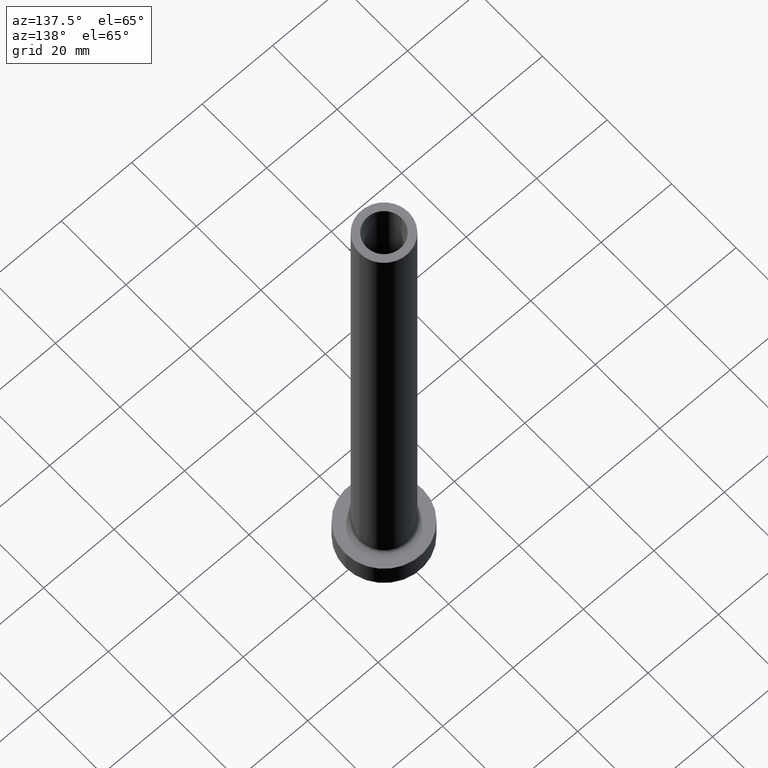
[diagram: clean part render]
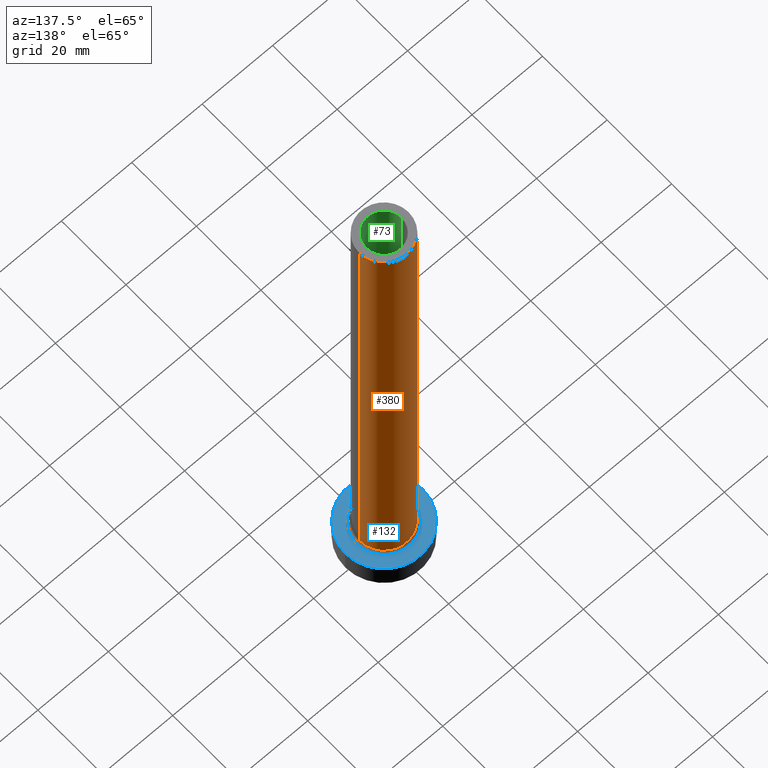
[diagram: same view with three faces highlighted in distinct colors, each labeled with its STEP entity id]
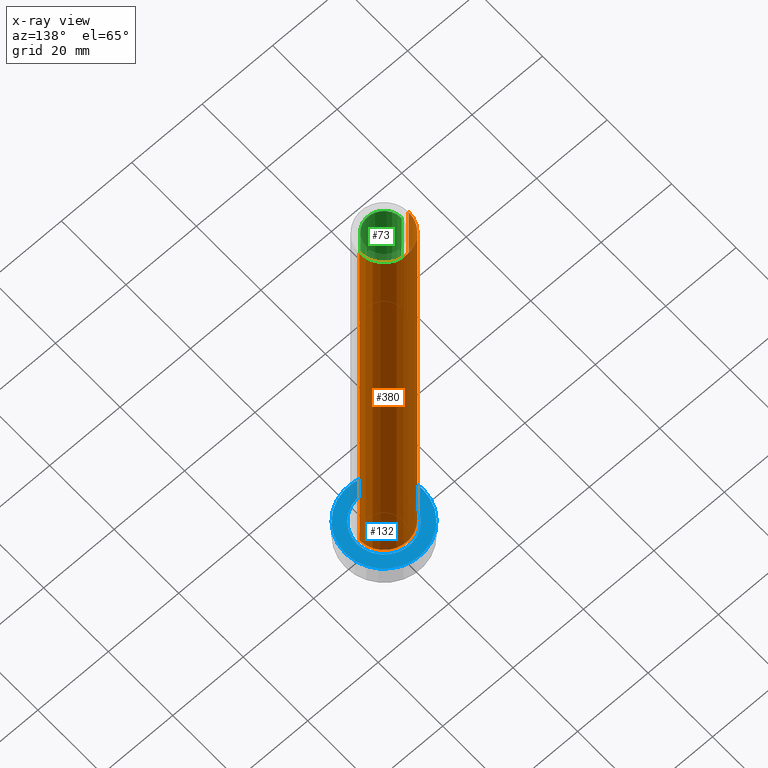
[diagram: x-ray of the same camera — body ghosted, the three highlighted faces saturated]
A machine part, auxiliary view with three faces highlighted in distinct colors.
The next image is the same camera in x-ray (body ghosted, the three faces saturated) — at least one of them is partly hidden behind the body in this view.
Their STEP definitions:

[orange] entity #380 — the highlighted cylindrical surface (edge-blend (fillet) strip) has radius 7 mm, axis along (-0, -0, -1).
#2 = EDGE_CURVE ( 'NONE', #40, #75, #135, .T. ) ;
#8 = CARTESIAN_POINT ( 'NONE',  ( -7.000000000000000888, 0.000000000000000000, 150.0000000000000000 ) ) ;
#13 = ORIENTED_EDGE ( 'NONE', *, *, #354, .F. ) ;
#40 = VERTEX_POINT ( 'NONE', #147 ) ;
#64 = CARTESIAN_POINT ( 'NONE',  ( 0.000000000000000000, 0.000000000000000000, 150.0000000000000000 ) ) ;
#74 = DIRECTION ( 'NONE',  ( 1.000000000000000000, 0.000000000000000000, 0.000000000000000000 ) ) ;
#75 = VERTEX_POINT ( 'NONE', #136 ) ;
#84 = FACE_OUTER_BOUND ( 'NONE', #410, .T. ) ;
#120 = ORIENTED_EDGE ( 'NONE', *, *, #2, .T. ) ;
#127 = DIRECTION ( 'NONE',  ( -0.000000000000000000, -0.000000000000000000, -1.000000000000000000 ) ) ;
#128 = CIRCLE ( 'NONE', #401, 7.000000000000000888 ) ;
#131 = DIRECTION ( 'NONE',  ( 0.000000000000000000, 0.000000000000000000, 1.000000000000000000 ) ) ;
#135 = CIRCLE ( 'NONE', #430, 7.000000000000000888 ) ;
#136 = CARTESIAN_POINT ( 'NONE',  ( -7.000000000000000888, 0.000000000000000000, 7.700000000000012612 ) ) ;
#147 = CARTESIAN_POINT ( 'NONE',  ( 7.000000000000000888, 8.572527594031474176E-16, 7.700000000000012612 ) ) ;
#164 = LINE ( 'NONE', #446, #306 ) ;
#167 = CARTESIAN_POINT ( 'NONE',  ( 0.000000000000000000, 0.000000000000000000, 150.0000000000000000 ) ) ;
#203 = CARTESIAN_POINT ( 'NONE',  ( 0.000000000000000000, 0.000000000000000000, 7.700000000000012612 ) ) ;
#209 = ORIENTED_EDGE ( 'NONE', *, *, #322, .T. ) ;
#222 = AXIS2_PLACEMENT_3D ( 'NONE', #167, #420, #374 ) ;
#247 = ORIENTED_EDGE ( 'NONE', *, *, #367, .F. ) ;
#268 = DIRECTION ( 'NONE',  ( 0.000000000000000000, 0.000000000000000000, 1.000000000000000000 ) ) ;
#286 = VERTEX_POINT ( 'NONE', #298 ) ;
#295 = DIRECTION ( 'NONE',  ( -0.000000000000000000, -0.000000000000000000, -1.000000000000000000 ) ) ;
#298 = CARTESIAN_POINT ( 'NONE',  ( 7.000000000000000888, 8.572527594031474176E-16, 150.0000000000000000 ) ) ;
#306 = VECTOR ( 'NONE', #127, 1000.000000000000000 ) ;
#322 = EDGE_CURVE ( 'NONE', #286, #40, #378, .T. ) ;
#331 = CARTESIAN_POINT ( 'NONE',  ( 7.000000000000000888, 8.572527594031474176E-16, 150.0000000000000000 ) ) ;
#349 = VERTEX_POINT ( 'NONE', #8 ) ;
#354 = EDGE_CURVE ( 'NONE', #349, #75, #164, .T. ) ;
#367 = EDGE_CURVE ( 'NONE', #286, #349, #128, .T. ) ;
#374 = DIRECTION ( 'NONE',  ( -1.000000000000000000, 0.000000000000000000, 0.000000000000000000 ) ) ;
#378 = LINE ( 'NONE', #331, #426 ) ;
#380 = ADVANCED_FACE ( 'NONE', ( #84 ), #452, .T. ) ;
#401 = AXIS2_PLACEMENT_3D ( 'NONE', #64, #131, #433 ) ;
#410 = EDGE_LOOP ( 'NONE', ( #247, #209, #120, #13 ) ) ;
#420 = DIRECTION ( 'NONE',  ( -0.000000000000000000, -0.000000000000000000, -1.000000000000000000 ) ) ;
#426 = VECTOR ( 'NONE', #295, 1000.000000000000000 ) ;
#430 = AXIS2_PLACEMENT_3D ( 'NONE', #203, #268, #74 ) ;
#433 = DIRECTION ( 'NONE',  ( 1.000000000000000000, 0.000000000000000000, 0.000000000000000000 ) ) ;
#446 = CARTESIAN_POINT ( 'NONE',  ( -7.000000000000000888, 0.000000000000000000, 150.0000000000000000 ) ) ;
#452 = CYLINDRICAL_SURFACE ( 'NONE', #222, 7.000000000000000888 ) ;

[blue] entity #132 — the highlighted planar face has unit normal (0, 0, 1).
#6 = DIRECTION ( 'NONE',  ( 0.000000000000000000, 0.000000000000000000, 1.000000000000000000 ) ) ;
#18 = FACE_BOUND ( 'NONE', #395, .T. ) ;
#19 = ORIENTED_EDGE ( 'NONE', *, *, #177, .T. ) ;
#28 = AXIS2_PLACEMENT_3D ( 'NONE', #83, #85, #87 ) ;
#38 = AXIS2_PLACEMENT_3D ( 'NONE', #385, #6, #181 ) ;
#51 = DIRECTION ( 'NONE',  ( 1.000000000000000000, 0.000000000000000000, 0.000000000000000000 ) ) ;
#83 = CARTESIAN_POINT ( 'NONE',  ( 0.000000000000000000, 0.000000000000000000, 7.000000000000000000 ) ) ;
#85 = DIRECTION ( 'NONE',  ( -0.000000000000000000, -0.000000000000000000, -1.000000000000000000 ) ) ;
#87 = DIRECTION ( 'NONE',  ( 1.000000000000000000, 0.000000000000000000, 0.000000000000000000 ) ) ;
#94 = AXIS2_PLACEMENT_3D ( 'NONE', #455, #138, #271 ) ;
#96 = EDGE_CURVE ( 'NONE', #182, #139, #98, .T. ) ;
#98 = CIRCLE ( 'NONE', #431, 7.700000000000001066 ) ;
#100 = CARTESIAN_POINT ( 'NONE',  ( 11.00000000000000000, 1.347111479062088405E-15, 7.000000000000000000 ) ) ;
#111 = CIRCLE ( 'NONE', #434, 11.00000000000000000 ) ;
#119 = CARTESIAN_POINT ( 'NONE',  ( -7.700000000000001066, 9.429780353434621002E-16, 7.000000000000006217 ) ) ;
#125 = EDGE_CURVE ( 'NONE', #421, #339, #111, .T. ) ;
#132 = ADVANCED_FACE ( 'NONE', ( #18, #359 ), #355, .T. ) ;
#138 = DIRECTION ( 'NONE',  ( 0.000000000000000000, 0.000000000000000000, 1.000000000000000000 ) ) ;
#139 = VERTEX_POINT ( 'NONE', #210 ) ;
#142 = CARTESIAN_POINT ( 'NONE',  ( 0.000000000000000000, 0.000000000000000000, 7.000000000000000000 ) ) ;
#157 = CIRCLE ( 'NONE', #94, 11.00000000000000000 ) ;
#175 = ORIENTED_EDGE ( 'NONE', *, *, #125, .T. ) ;
#177 = EDGE_CURVE ( 'NONE', #139, #182, #221, .T. ) ;
#178 = DIRECTION ( 'NONE',  ( 0.000000000000000000, 0.000000000000000000, 1.000000000000000000 ) ) ;
#181 = DIRECTION ( 'NONE',  ( 1.000000000000000000, 0.000000000000000000, -0.000000000000000000 ) ) ;
#182 = VERTEX_POINT ( 'NONE', #119 ) ;
#210 = CARTESIAN_POINT ( 'NONE',  ( 7.700000000000001066, 0.000000000000000000, 7.000000000000006217 ) ) ;
#221 = CIRCLE ( 'NONE', #28, 7.700000000000001066 ) ;
#242 = DIRECTION ( 'NONE',  ( -0.000000000000000000, -0.000000000000000000, -1.000000000000000000 ) ) ;
#244 = CARTESIAN_POINT ( 'NONE',  ( 0.000000000000000000, 0.000000000000000000, 7.000000000000000000 ) ) ;
#253 = ORIENTED_EDGE ( 'NONE', *, *, #96, .T. ) ;
#271 = DIRECTION ( 'NONE',  ( 1.000000000000000000, 0.000000000000000000, 0.000000000000000000 ) ) ;
#316 = ORIENTED_EDGE ( 'NONE', *, *, #437, .T. ) ;
#323 = EDGE_LOOP ( 'NONE', ( #316, #175 ) ) ;
#339 = VERTEX_POINT ( 'NONE', #400 ) ;
#355 = PLANE ( 'NONE',  #38 ) ;
#359 = FACE_OUTER_BOUND ( 'NONE', #323, .T. ) ;
#385 = CARTESIAN_POINT ( 'NONE',  ( 0.000000000000000000, 0.000000000000000000, 7.000000000000000000 ) ) ;
#395 = EDGE_LOOP ( 'NONE', ( #19, #253 ) ) ;
#400 = CARTESIAN_POINT ( 'NONE',  ( -11.00000000000000000, 0.000000000000000000, 7.000000000000000000 ) ) ;
#421 = VERTEX_POINT ( 'NONE', #100 ) ;
#431 = AXIS2_PLACEMENT_3D ( 'NONE', #142, #242, #461 ) ;
#434 = AXIS2_PLACEMENT_3D ( 'NONE', #244, #178, #51 ) ;
#437 = EDGE_CURVE ( 'NONE', #339, #421, #157, .T. ) ;
#455 = CARTESIAN_POINT ( 'NONE',  ( 0.000000000000000000, 0.000000000000000000, 7.000000000000000000 ) ) ;
#461 = DIRECTION ( 'NONE',  ( 1.000000000000000000, 0.000000000000000000, 0.000000000000000000 ) ) ;

[green] entity #73 — the highlighted cylindrical surface (edge-blend (fillet) strip) has radius 5 mm, axis along (0, 0, -1).
#3 = CARTESIAN_POINT ( 'NONE',  ( 5.000000000000000000, 6.123233995736765296E-16, 105.0000000000000000 ) ) ;
#9 = DIRECTION ( 'NONE',  ( 0.000000000000000000, 0.000000000000000000, -1.000000000000000000 ) ) ;
#10 = ORIENTED_EDGE ( 'NONE', *, *, #445, .F. ) ;
#22 = CIRCLE ( 'NONE', #186, 5.000000000000000000 ) ;
#31 = ORIENTED_EDGE ( 'NONE', *, *, #145, .F. ) ;
#36 = VERTEX_POINT ( 'NONE', #3 ) ;
#41 = FACE_OUTER_BOUND ( 'NONE', #149, .T. ) ;
#53 = VERTEX_POINT ( 'NONE', #308 ) ;
#54 = LINE ( 'NONE', #351, #289 ) ;
#56 = LINE ( 'NONE', #396, #102 ) ;
#73 = ADVANCED_FACE ( 'NONE', ( #41 ), #173, .F. ) ;
#76 = DIRECTION ( 'NONE',  ( 0.000000000000000000, 0.000000000000000000, 1.000000000000000000 ) ) ;
#102 = VECTOR ( 'NONE', #9, 1000.000000000000000 ) ;
#145 = EDGE_CURVE ( 'NONE', #379, #270, #54, .T. ) ;
#149 = EDGE_LOOP ( 'NONE', ( #439, #296, #10, #31 ) ) ;
#166 = EDGE_CURVE ( 'NONE', #53, #36, #56, .T. ) ;
#173 = CYLINDRICAL_SURFACE ( 'NONE', #176, 5.000000000000000000 ) ;
#176 = AXIS2_PLACEMENT_3D ( 'NONE', #196, #425, #315 ) ;
#186 = AXIS2_PLACEMENT_3D ( 'NONE', #360, #76, #225 ) ;
#196 = CARTESIAN_POINT ( 'NONE',  ( 0.000000000000000000, 0.000000000000000000, 150.0000000000000000 ) ) ;
#205 = AXIS2_PLACEMENT_3D ( 'NONE', #408, #369, #334 ) ;
#225 = DIRECTION ( 'NONE',  ( 1.000000000000000000, 0.000000000000000000, 0.000000000000000000 ) ) ;
#230 = EDGE_CURVE ( 'NONE', #379, #53, #22, .T. ) ;
#270 = VERTEX_POINT ( 'NONE', #409 ) ;
#278 = DIRECTION ( 'NONE',  ( 0.000000000000000000, 0.000000000000000000, -1.000000000000000000 ) ) ;
#289 = VECTOR ( 'NONE', #278, 1000.000000000000000 ) ;
#296 = ORIENTED_EDGE ( 'NONE', *, *, #166, .T. ) ;
#308 = CARTESIAN_POINT ( 'NONE',  ( 5.000000000000000000, 6.123233995736765296E-16, 150.0000000000000000 ) ) ;
#315 = DIRECTION ( 'NONE',  ( -1.000000000000000000, 0.000000000000000000, 0.000000000000000000 ) ) ;
#334 = DIRECTION ( 'NONE',  ( 1.000000000000000000, 0.000000000000000000, 0.000000000000000000 ) ) ;
#351 = CARTESIAN_POINT ( 'NONE',  ( -5.000000000000000000, 0.000000000000000000, 150.0000000000000000 ) ) ;
#360 = CARTESIAN_POINT ( 'NONE',  ( 0.000000000000000000, 0.000000000000000000, 150.0000000000000000 ) ) ;
#369 = DIRECTION ( 'NONE',  ( 0.000000000000000000, 0.000000000000000000, 1.000000000000000000 ) ) ;
#379 = VERTEX_POINT ( 'NONE', #393 ) ;
#393 = CARTESIAN_POINT ( 'NONE',  ( -5.000000000000000000, 0.000000000000000000, 150.0000000000000000 ) ) ;
#396 = CARTESIAN_POINT ( 'NONE',  ( 5.000000000000000000, 6.123233995736765296E-16, 150.0000000000000000 ) ) ;
#408 = CARTESIAN_POINT ( 'NONE',  ( 0.000000000000000000, 0.000000000000000000, 105.0000000000000000 ) ) ;
#409 = CARTESIAN_POINT ( 'NONE',  ( -5.000000000000000000, 0.000000000000000000, 105.0000000000000000 ) ) ;
#411 = CIRCLE ( 'NONE', #205, 5.000000000000000000 ) ;
#425 = DIRECTION ( 'NONE',  ( 0.000000000000000000, 0.000000000000000000, -1.000000000000000000 ) ) ;
#439 = ORIENTED_EDGE ( 'NONE', *, *, #230, .T. ) ;
#445 = EDGE_CURVE ( 'NONE', #270, #36, #411, .T. ) ;